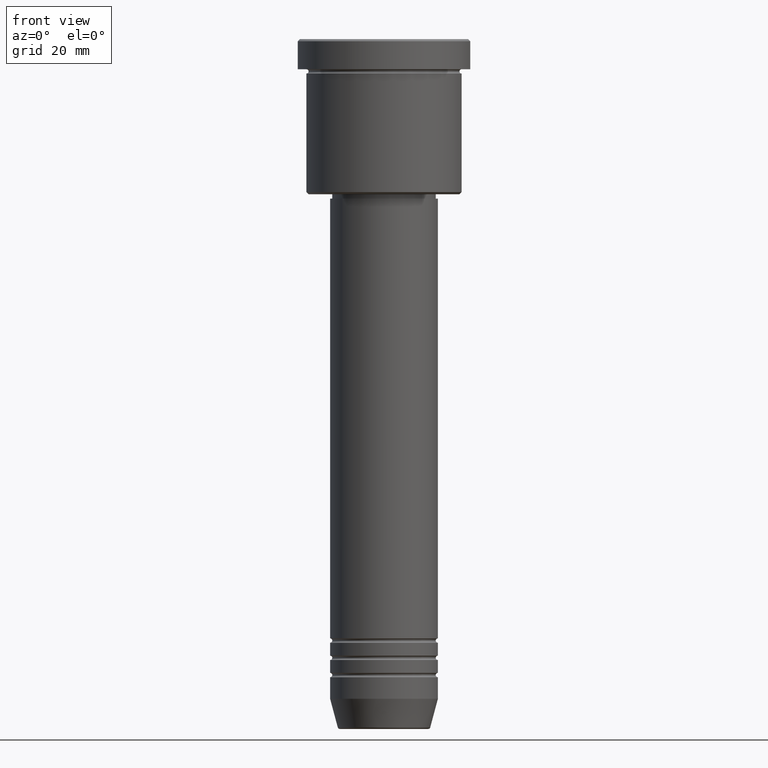
[diagram: clean part render]
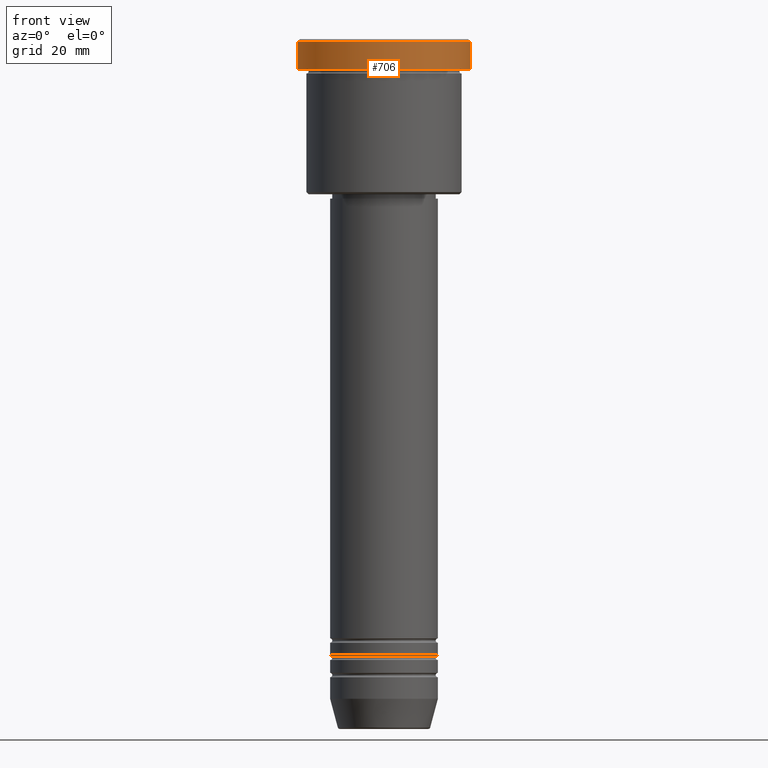
[diagram: same view with one face highlighted and labeled with its STEP entity id]
A machine part, front view. The second image highlights one B-rep face of the part: STEP entity #706.
In plain terms, the highlighted cylindrical surface (partial cylindrical patch) has radius 20 mm, axis along (-0, -0, 1).
Its self-contained STEP definition (entity closure, byte-faithful):
#34 = EDGE_CURVE ( 'NONE', #296, #788, #102, .T. ) ;
#52 = CARTESIAN_POINT ( 'NONE',  ( 20.00000000000000000, 0.000000000000000000, -6.999999999999995559 ) ) ;
#87 = DIRECTION ( 'NONE',  ( 1.000000000000000000, 0.000000000000000000, 0.000000000000000000 ) ) ;
#102 = CIRCLE ( 'NONE', #564, 20.00000000000000000 ) ;
#116 = ORIENTED_EDGE ( 'NONE', *, *, #1111, .F. ) ;
#124 = CARTESIAN_POINT ( 'NONE',  ( -20.00000000000000000, 2.449293598294706513E-15, -0.5000000000000525135 ) ) ;
#163 = DIRECTION ( 'NONE',  ( -0.000000000000000000, -0.000000000000000000, 1.000000000000000000 ) ) ;
#170 = ORIENTED_EDGE ( 'NONE', *, *, #34, .T. ) ;
#197 = CARTESIAN_POINT ( 'NONE',  ( -20.00000000000000000, 2.449293598294706513E-15, 0.000000000000000000 ) ) ;
#203 = ORIENTED_EDGE ( 'NONE', *, *, #954, .T. ) ;
#205 = ORIENTED_EDGE ( 'NONE', *, *, #335, .T. ) ;
#220 = VERTEX_POINT ( 'NONE', #920 ) ;
#221 = FACE_OUTER_BOUND ( 'NONE', #659, .T. ) ;
#290 = AXIS2_PLACEMENT_3D ( 'NONE', #854, #632, #87 ) ;
#296 = VERTEX_POINT ( 'NONE', #369 ) ;
#304 = CARTESIAN_POINT ( 'NONE',  ( 0.000000000000000000, 0.000000000000000000, 0.000000000000000000 ) ) ;
#314 = DIRECTION ( 'NONE',  ( -0.000000000000000000, -0.000000000000000000, 1.000000000000000000 ) ) ;
#335 = EDGE_CURVE ( 'NONE', #835, #296, #518, .T. ) ;
#369 = CARTESIAN_POINT ( 'NONE',  ( 20.00000000000000000, 0.000000000000000000, -0.5000000000000525135 ) ) ;
#426 = AXIS2_PLACEMENT_3D ( 'NONE', #304, #314, #494 ) ;
#494 = DIRECTION ( 'NONE',  ( 1.000000000000000000, 0.000000000000000000, 0.000000000000000000 ) ) ;
#500 = CYLINDRICAL_SURFACE ( 'NONE', #426, 20.00000000000000000 ) ;
#518 = LINE ( 'NONE', #967, #1123 ) ;
#563 = CIRCLE ( 'NONE', #290, 20.00000000000000000 ) ;
#564 = AXIS2_PLACEMENT_3D ( 'NONE', #921, #940, #742 ) ;
#632 = DIRECTION ( 'NONE',  ( -0.000000000000000000, -0.000000000000000000, 1.000000000000000000 ) ) ;
#638 = LINE ( 'NONE', #197, #764 ) ;
#659 = EDGE_LOOP ( 'NONE', ( #116, #203, #205, #170 ) ) ;
#706 = ADVANCED_FACE ( 'NONE', ( #221 ), #500, .T. ) ;
#742 = DIRECTION ( 'NONE',  ( 1.000000000000000000, 0.000000000000000000, 0.000000000000000000 ) ) ;
#764 = VECTOR ( 'NONE', #833, 1000.000000000000000 ) ;
#788 = VERTEX_POINT ( 'NONE', #124 ) ;
#833 = DIRECTION ( 'NONE',  ( -0.000000000000000000, -0.000000000000000000, 1.000000000000000000 ) ) ;
#835 = VERTEX_POINT ( 'NONE', #52 ) ;
#854 = CARTESIAN_POINT ( 'NONE',  ( 0.000000000000000000, 0.000000000000000000, -6.999999999999995559 ) ) ;
#920 = CARTESIAN_POINT ( 'NONE',  ( -20.00000000000000000, 2.449293598294706513E-15, -6.999999999999995559 ) ) ;
#921 = CARTESIAN_POINT ( 'NONE',  ( 0.000000000000000000, 0.000000000000000000, -0.5000000000000525135 ) ) ;
#940 = DIRECTION ( 'NONE',  ( 0.000000000000000000, 0.000000000000000000, -1.000000000000000000 ) ) ;
#954 = EDGE_CURVE ( 'NONE', #220, #835, #563, .T. ) ;
#967 = CARTESIAN_POINT ( 'NONE',  ( 20.00000000000000000, 0.000000000000000000, 0.000000000000000000 ) ) ;
#1111 = EDGE_CURVE ( 'NONE', #220, #788, #638, .T. ) ;
#1123 = VECTOR ( 'NONE', #163, 1000.000000000000000 ) ;